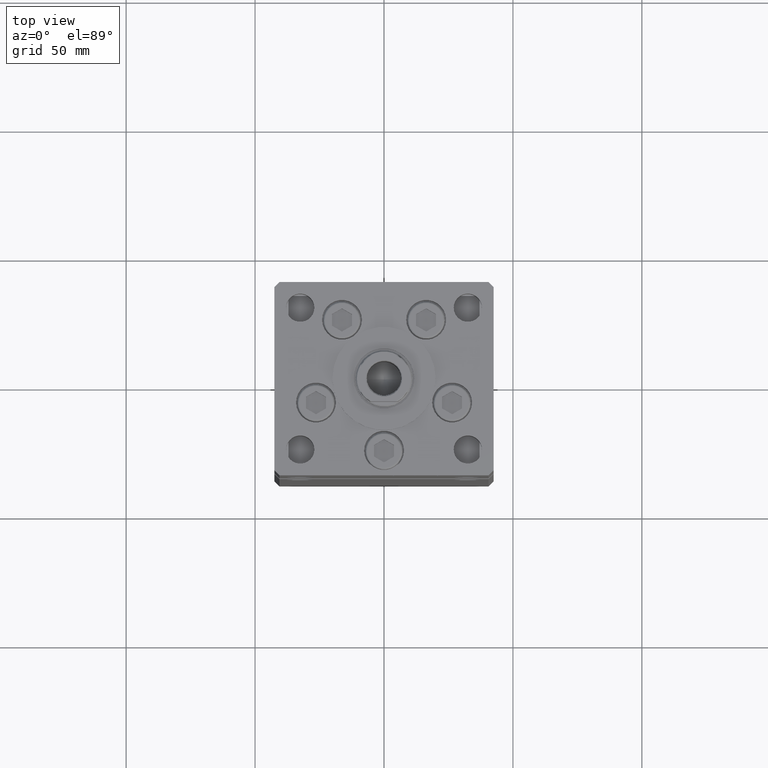
[diagram: clean part render]
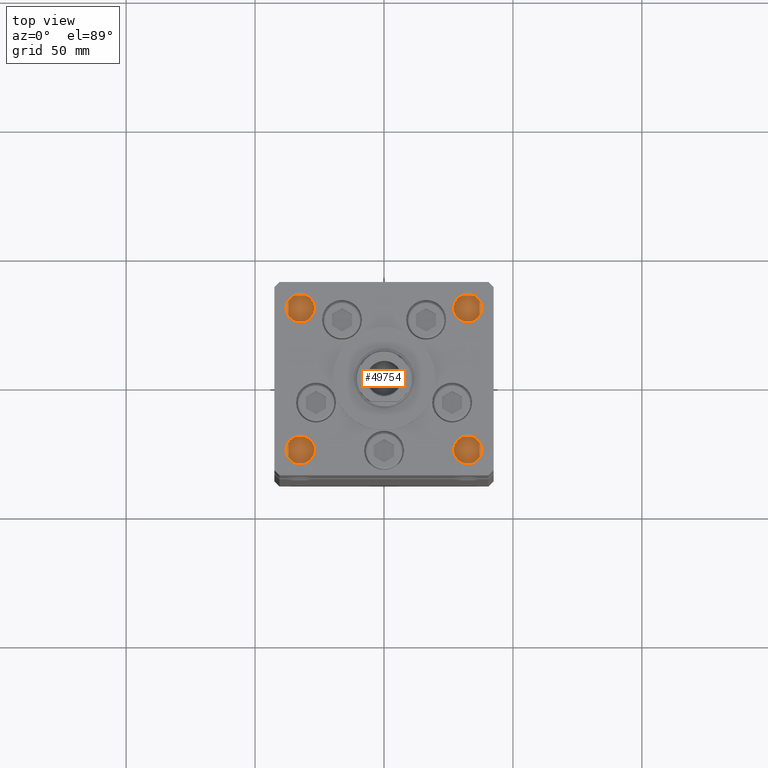
[diagram: same view with one face highlighted and labeled with its STEP entity id]
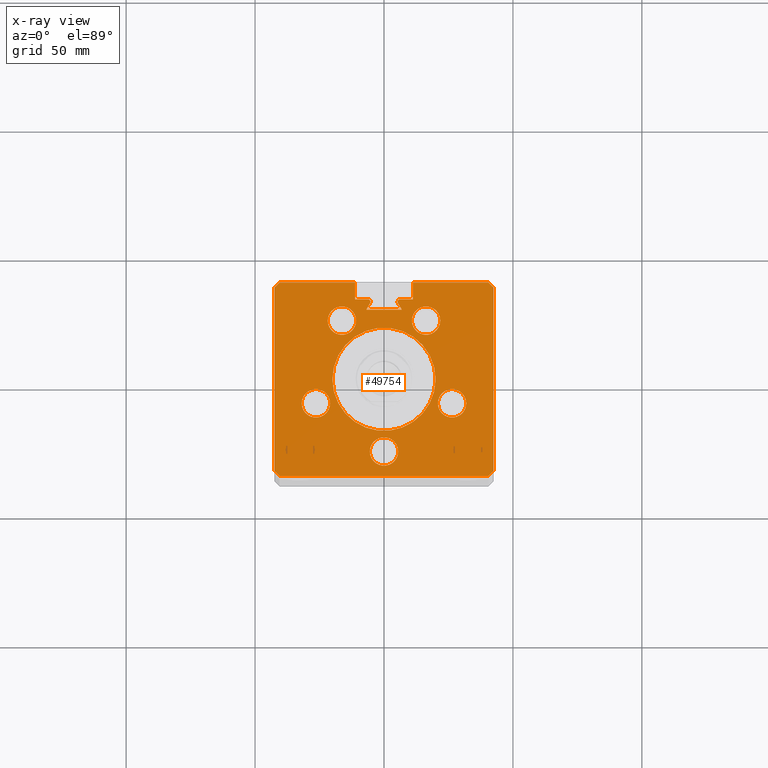
[diagram: x-ray of the same camera — body ghosted, the highlighted face saturated]
A machine part, top view. The second image highlights one B-rep face of the part: STEP entity #49754.
The next image is the same camera in x-ray: the body ghosted, the highlighted face saturated — about 0% of this face is hidden behind the body in this view.
In plain terms, the highlighted planar face has unit normal (0, 0, -1).
Its self-contained STEP definition (entity closure, byte-faithful):
#14 = VECTOR ( 'NONE', #19499, 1000.000000000000114 ) ;
#664 = ORIENTED_EDGE ( 'NONE', *, *, #48038, .F. ) ;
#746 = ORIENTED_EDGE ( 'NONE', *, *, #6287, .F. ) ;
#1434 = DIRECTION ( 'NONE',  ( 0.000000000000000000, 0.000000000000000000, 1.000000000000000000 ) ) ;
#1459 = VERTEX_POINT ( 'NONE', #34667 ) ;
#1681 = EDGE_CURVE ( 'NONE', #45643, #12993, #36805, .T. ) ;
#2000 = DIRECTION ( 'NONE',  ( 0.000000000000000000, 0.000000000000000000, 1.000000000000000000 ) ) ;
#3294 = CARTESIAN_POINT ( 'NONE',  ( -10.82291334290543539, 22.74999999999999645, 218.5000000000000000 ) ) ;
#3360 = VECTOR ( 'NONE', #42846, 1000.000000000000000 ) ;
#3737 = ORIENTED_EDGE ( 'NONE', *, *, #7139, .F. ) ;
#3821 = EDGE_LOOP ( 'NONE', ( #35734, #36128 ) ) ;
#4309 = DIRECTION ( 'NONE',  ( 1.000000000000000000, 0.000000000000000000, 0.000000000000000000 ) ) ;
#4550 = CIRCLE ( 'NONE', #34580, 20.00000000000000000 ) ;
#4726 = CIRCLE ( 'NONE', #41638, 0.9333333333340008142 ) ;
#5113 = DIRECTION ( 'NONE',  ( 0.000000000000000000, 0.000000000000000000, -1.000000000000000000 ) ) ;
#5219 = CARTESIAN_POINT ( 'NONE',  ( -11.24999999999999822, 37.50000000000000000, 218.5000000000000000 ) ) ;
#5471 = CIRCLE ( 'NONE', #18320, 5.500000000000000000 ) ;
#6014 = LINE ( 'NONE', #22404, #13465 ) ;
#6057 = DIRECTION ( 'NONE',  ( 0.000000000000000000, 0.000000000000000000, 1.000000000000000000 ) ) ;
#6229 = EDGE_CURVE ( 'NONE', #40779, #30402, #41894, .T. ) ;
#6287 = EDGE_CURVE ( 'NONE', #45111, #23029, #13664, .T. ) ;
#6391 = CARTESIAN_POINT ( 'NONE',  ( -26.39865316429776954, -9.333333333333342807, 218.5000000000000000 ) ) ;
#6404 = AXIS2_PLACEMENT_3D ( 'NONE', #35314, #2000, #31290 ) ;
#6434 = VERTEX_POINT ( 'NONE', #52830 ) ;
#6723 = LINE ( 'NONE', #31973, #45683 ) ;
#6940 = VECTOR ( 'NONE', #17433, 1000.000000000000000 ) ;
#7139 = EDGE_CURVE ( 'NONE', #40504, #16895, #37858, .T. ) ;
#7219 = CARTESIAN_POINT ( 'NONE',  ( 6.876153656360465938, 26.99999999999986855, 218.5000000000000000 ) ) ;
#7511 = DIRECTION ( 'NONE',  ( 0.4999999999999994449, -0.8660254037844390407, 0.000000000000000000 ) ) ;
#7575 = ORIENTED_EDGE ( 'NONE', *, *, #22132, .F. ) ;
#7730 = EDGE_CURVE ( 'NONE', #1459, #6434, #42205, .T. ) ;
#8155 = CIRCLE ( 'NONE', #32178, 5.500000000000000000 ) ;
#8922 = ORIENTED_EDGE ( 'NONE', *, *, #18905, .F. ) ;
#8979 = DIRECTION ( 'NONE',  ( 1.000000000000000000, 0.000000000000000000, 0.000000000000000000 ) ) ;
#9048 = EDGE_LOOP ( 'NONE', ( #13295, #47566 ) ) ;
#9122 = CIRCLE ( 'NONE', #42595, 5.499999999999998224 ) ;
#9239 = VECTOR ( 'NONE', #29105, 1000.000000000000000 ) ;
#9405 = CARTESIAN_POINT ( 'NONE',  ( 26.39865316429776954, -9.333333333333339255, 218.5000000000000000 ) ) ;
#9454 = CARTESIAN_POINT ( 'NONE',  ( 42.49999999999998579, -35.50000000000000711, 218.5000000000000000 ) ) ;
#9811 = CARTESIAN_POINT ( 'NONE',  ( 0.000000000000000000, 0.000000000000000000, 218.5000000000000000 ) ) ;
#9819 = CIRCLE ( 'NONE', #6404, 5.499999999999998224 ) ;
#10049 = CARTESIAN_POINT ( 'NONE',  ( 11.24999999999999822, 0.000000000000000000, 218.5000000000000000 ) ) ;
#10110 = CARTESIAN_POINT ( 'NONE',  ( -40.50000000000000711, 37.50000000000000000, 218.5000000000000000 ) ) ;
#10135 = VERTEX_POINT ( 'NONE', #18076 ) ;
#10332 = CARTESIAN_POINT ( 'NONE',  ( -31.89865316429776954, -9.333333333333342807, 218.5000000000000000 ) ) ;
#10414 = ORIENTED_EDGE ( 'NONE', *, *, #46693, .T. ) ;
#10871 = CARTESIAN_POINT ( 'NONE',  ( 0.000000000000000000, 0.000000000000000000, 218.5000000000000000 ) ) ;
#10887 = VECTOR ( 'NONE', #23608, 999.9999999999998863 ) ;
#10999 = CARTESIAN_POINT ( 'NONE',  ( 6.183333333333997928, 31.00000000000000000, 218.5000000000000000 ) ) ;
#11100 = AXIS2_PLACEMENT_3D ( 'NONE', #9405, #29314, #29841 ) ;
#11823 = VECTOR ( 'NONE', #11841, 1000.000000000000000 ) ;
#11841 = DIRECTION ( 'NONE',  ( 0.000000000000000000, 1.000000000000000000, 0.000000000000000000 ) ) ;
#12066 = VERTEX_POINT ( 'NONE', #10999 ) ;
#12215 = EDGE_CURVE ( 'NONE', #29094, #12066, #16641, .T. ) ;
#12320 = DIRECTION ( 'NONE',  ( 0.000000000000000000, 0.000000000000000000, 1.000000000000000000 ) ) ;
#12546 = VECTOR ( 'NONE', #8979, 1000.000000000000000 ) ;
#12708 = CARTESIAN_POINT ( 'NONE',  ( 0.000000000000000000, 31.00000000000000000, 218.5000000000000000 ) ) ;
#12993 = VERTEX_POINT ( 'NONE', #43070 ) ;
#13192 = ORIENTED_EDGE ( 'NONE', *, *, #17776, .F. ) ;
#13295 = ORIENTED_EDGE ( 'NONE', *, *, #39480, .F. ) ;
#13465 = VECTOR ( 'NONE', #38797, 1000.000000000000114 ) ;
#13664 = LINE ( 'NONE', #46956, #42983 ) ;
#13805 = CARTESIAN_POINT ( 'NONE',  ( 16.32291334290543361, 22.75000000000000000, 218.5000000000000000 ) ) ;
#14437 = EDGE_CURVE ( 'NONE', #23377, #35786, #6723, .T. ) ;
#14609 = ORIENTED_EDGE ( 'NONE', *, *, #40096, .T. ) ;
#14861 = EDGE_LOOP ( 'NONE', ( #3737, #664 ) ) ;
#15185 = CARTESIAN_POINT ( 'NONE',  ( 1.714505518806294638E-15, -28.00000000000000000, 218.5000000000000000 ) ) ;
#15456 = AXIS2_PLACEMENT_3D ( 'NONE', #9811, #29461, #21925 ) ;
#15467 = ORIENTED_EDGE ( 'NONE', *, *, #38884, .F. ) ;
#15511 = CARTESIAN_POINT ( 'NONE',  ( 1.714505518806294638E-15, -28.00000000000000000, 218.5000000000000000 ) ) ;
#16166 = DIRECTION ( 'NONE',  ( 0.000000000000000000, 0.000000000000000000, 1.000000000000000000 ) ) ;
#16606 = VERTEX_POINT ( 'NONE', #34868 ) ;
#16641 = LINE ( 'NONE', #37054, #41425 ) ;
#16752 = LINE ( 'NONE', #12708, #9239 ) ;
#16895 = VERTEX_POINT ( 'NONE', #21261 ) ;
#16991 = VERTEX_POINT ( 'NONE', #42489 ) ;
#17077 = CARTESIAN_POINT ( 'NONE',  ( 5.375042956467945388, 29.59999999999899600, 218.5000000000000000 ) ) ;
#17101 = FACE_BOUND ( 'NONE', #14861, .T. ) ;
#17176 = DIRECTION ( 'NONE',  ( -1.000000000000000000, 0.000000000000000000, 0.000000000000000000 ) ) ;
#17433 = DIRECTION ( 'NONE',  ( 1.000000000000000000, 0.000000000000000000, 0.000000000000000000 ) ) ;
#17676 = CARTESIAN_POINT ( 'NONE',  ( 42.50000000000001421, 35.50000000000000711, 218.5000000000000000 ) ) ;
#17776 = EDGE_CURVE ( 'NONE', #40232, #52438, #4550, .T. ) ;
#18076 = CARTESIAN_POINT ( 'NONE',  ( -6.876153656360465938, 26.99999999999986855, 218.5000000000000000 ) ) ;
#18136 = EDGE_CURVE ( 'NONE', #35786, #10135, #37391, .T. ) ;
#18320 = AXIS2_PLACEMENT_3D ( 'NONE', #38266, #30985, #26173 ) ;
#18362 = CARTESIAN_POINT ( 'NONE',  ( -6.183333333333997928, 30.06666666666599852, 218.5000000000000000 ) ) ;
#18630 = DIRECTION ( 'NONE',  ( 0.000000000000000000, 0.000000000000000000, -1.000000000000000000 ) ) ;
#18905 = EDGE_CURVE ( 'NONE', #28626, #19885, #5471, .T. ) ;
#18982 = DIRECTION ( 'NONE',  ( 1.000000000000000000, 0.000000000000000000, 0.000000000000000000 ) ) ;
#19087 = ORIENTED_EDGE ( 'NONE', *, *, #37057, .T. ) ;
#19295 = ORIENTED_EDGE ( 'NONE', *, *, #33838, .F. ) ;
#19415 = DIRECTION ( 'NONE',  ( -3.909236002201255146E-16, -1.000000000000000000, 0.000000000000000000 ) ) ;
#19458 = DIRECTION ( 'NONE',  ( 3.909236002201255146E-16, -1.000000000000000000, 0.000000000000000000 ) ) ;
#19475 = EDGE_CURVE ( 'NONE', #23377, #12066, #52673, .T. ) ;
#19499 = DIRECTION ( 'NONE',  ( 0.7071067811865474617, -0.7071067811865474617, 0.000000000000000000 ) ) ;
#19600 = CARTESIAN_POINT ( 'NONE',  ( 40.50000000000000711, 37.50000000000000000, 218.5000000000000000 ) ) ;
#19843 = CARTESIAN_POINT ( 'NONE',  ( -16.84845819336020867, 9.727461873366657130, 218.5000000000000000 ) ) ;
#19885 = VERTEX_POINT ( 'NONE', #3294 ) ;
#19968 = LINE ( 'NONE', #44697, #28923 ) ;
#20746 = ORIENTED_EDGE ( 'NONE', *, *, #31229, .F. ) ;
#20892 = DIRECTION ( 'NONE',  ( 0.000000000000000000, 0.000000000000000000, -1.000000000000000000 ) ) ;
#21197 = ORIENTED_EDGE ( 'NONE', *, *, #41450, .F. ) ;
#21261 = CARTESIAN_POINT ( 'NONE',  ( 20.89865316429777309, -9.333333333333339255, 218.5000000000000000 ) ) ;
#21440 = CARTESIAN_POINT ( 'NONE',  ( 0.000000000000000000, 0.000000000000000000, 218.5000000000000000 ) ) ;
#21502 = ORIENTED_EDGE ( 'NONE', *, *, #32485, .F. ) ;
#21784 = CARTESIAN_POINT ( 'NONE',  ( 31.89865316429776954, -9.333333333333339255, 218.5000000000000000 ) ) ;
#21925 = DIRECTION ( 'NONE',  ( -1.000000000000000000, 0.000000000000000000, -0.000000000000000000 ) ) ;
#22132 = EDGE_CURVE ( 'NONE', #49683, #39899, #38187, .T. ) ;
#22142 = AXIS2_PLACEMENT_3D ( 'NONE', #48605, #12320, #28995 ) ;
#22163 = LINE ( 'NONE', #10049, #3360 ) ;
#22350 = DIRECTION ( 'NONE',  ( 0.000000000000000000, 0.000000000000000000, 1.000000000000000000 ) ) ;
#22404 = CARTESIAN_POINT ( 'NONE',  ( 42.49999999999998579, -35.50000000000000711, 218.5000000000000000 ) ) ;
#22422 = AXIS2_PLACEMENT_3D ( 'NONE', #13805, #1434, #30196 ) ;
#22554 = CARTESIAN_POINT ( 'NONE',  ( -40.49999999999998579, -37.50000000000000711, 218.5000000000000000 ) ) ;
#22784 = DIRECTION ( 'NONE',  ( 0.000000000000000000, 0.000000000000000000, 1.000000000000000000 ) ) ;
#23029 = VERTEX_POINT ( 'NONE', #17676 ) ;
#23351 = LINE ( 'NONE', #22554, #43717 ) ;
#23377 = VERTEX_POINT ( 'NONE', #17077 ) ;
#23608 = DIRECTION ( 'NONE',  ( 0.4999999999999994449, 0.8660254037844390407, 0.000000000000000000 ) ) ;
#24217 = DIRECTION ( 'NONE',  ( 1.000000000000000000, 0.000000000000000000, 0.000000000000000000 ) ) ;
#24698 = ORIENTED_EDGE ( 'NONE', *, *, #12215, .T. ) ;
#24751 = CARTESIAN_POINT ( 'NONE',  ( -11.24999999999999822, 0.000000000000000000, 218.5000000000000000 ) ) ;
#25123 = CARTESIAN_POINT ( 'NONE',  ( -21.82291334290543361, 22.74999999999999645, 218.5000000000000000 ) ) ;
#25125 = ORIENTED_EDGE ( 'NONE', *, *, #48203, .T. ) ;
#25158 = FACE_BOUND ( 'NONE', #41861, .T. ) ;
#25167 = EDGE_LOOP ( 'NONE', ( #19295, #20746 ) ) ;
#25373 = ORIENTED_EDGE ( 'NONE', *, *, #18136, .T. ) ;
#25541 = CARTESIAN_POINT ( 'NONE',  ( -6.183333333333997928, 30.06666666666599852, 218.5000000000000000 ) ) ;
#25613 = CARTESIAN_POINT ( 'NONE',  ( 20.00000000000000000, 2.449293598294706513E-15, 218.5000000000000000 ) ) ;
#25690 = PLANE ( 'NONE',  #15456 ) ;
#26024 = DIRECTION ( 'NONE',  ( 0.7071067811865500152, -0.7071067811865451302, 0.000000000000000000 ) ) ;
#26173 = DIRECTION ( 'NONE',  ( 1.000000000000000000, 0.000000000000000000, 0.000000000000000000 ) ) ;
#26212 = CARTESIAN_POINT ( 'NONE',  ( -40.50000000000000711, 37.50000000000000000, 218.5000000000000000 ) ) ;
#27086 = ORIENTED_EDGE ( 'NONE', *, *, #19475, .F. ) ;
#27291 = EDGE_LOOP ( 'NONE', ( #44216, #50630, #49778, #34422, #14609, #37874, #25125, #21197, #27357, #746, #40278, #10414, #24698, #27086, #51271, #25373, #19087, #21502, #7575 ) ) ;
#27357 = ORIENTED_EDGE ( 'NONE', *, *, #29972, .F. ) ;
#27390 = CIRCLE ( 'NONE', #11100, 5.499999999999998224 ) ;
#27525 = EDGE_CURVE ( 'NONE', #50771, #30402, #28784, .T. ) ;
#27732 = EDGE_CURVE ( 'NONE', #19885, #28626, #42733, .T. ) ;
#27791 = AXIS2_PLACEMENT_3D ( 'NONE', #28963, #20892, #18982 ) ;
#28434 = EDGE_CURVE ( 'NONE', #16606, #35271, #47711, .T. ) ;
#28528 = CARTESIAN_POINT ( 'NONE',  ( 0.000000000000000000, 26.99999999999986855, 218.5000000000000000 ) ) ;
#28605 = LINE ( 'NONE', #5219, #12546 ) ;
#28626 = VERTEX_POINT ( 'NONE', #25123 ) ;
#28663 = EDGE_LOOP ( 'NONE', ( #15467, #13192 ) ) ;
#28784 = LINE ( 'NONE', #24751, #11823 ) ;
#28923 = VECTOR ( 'NONE', #19458, 1000.000000000000000 ) ;
#28963 = CARTESIAN_POINT ( 'NONE',  ( 6.183333333333997928, 30.06666666666599852, 218.5000000000000000 ) ) ;
#28995 = DIRECTION ( 'NONE',  ( 1.000000000000000000, 0.000000000000000000, 0.000000000000000000 ) ) ;
#29094 = VERTEX_POINT ( 'NONE', #31333 ) ;
#29105 = DIRECTION ( 'NONE',  ( -1.000000000000000000, 0.000000000000000000, 0.000000000000000000 ) ) ;
#29314 = DIRECTION ( 'NONE',  ( 0.000000000000000000, 0.000000000000000000, 1.000000000000000000 ) ) ;
#29337 = DIRECTION ( 'NONE',  ( -1.000000000000000000, 0.000000000000000000, 0.000000000000000000 ) ) ;
#29461 = DIRECTION ( 'NONE',  ( 0.000000000000000000, 0.000000000000000000, -1.000000000000000000 ) ) ;
#29841 = DIRECTION ( 'NONE',  ( 1.000000000000000000, 0.000000000000000000, 0.000000000000000000 ) ) ;
#29972 = EDGE_CURVE ( 'NONE', #23029, #41037, #47890, .T. ) ;
#30066 = CARTESIAN_POINT ( 'NONE',  ( -20.00000000000000000, 0.000000000000000000, 218.5000000000000000 ) ) ;
#30196 = DIRECTION ( 'NONE',  ( 1.000000000000000000, 0.000000000000000000, 0.000000000000000000 ) ) ;
#30402 = VERTEX_POINT ( 'NONE', #39354 ) ;
#30417 = VECTOR ( 'NONE', #19415, 1000.000000000000000 ) ;
#30429 = EDGE_CURVE ( 'NONE', #6434, #1459, #9819, .T. ) ;
#30985 = DIRECTION ( 'NONE',  ( 0.000000000000000000, 0.000000000000000000, 1.000000000000000000 ) ) ;
#31129 = DIRECTION ( 'NONE',  ( 1.000000000000000000, 0.000000000000000000, 0.000000000000000000 ) ) ;
#31154 = DIRECTION ( 'NONE',  ( 1.000000000000000000, 0.000000000000000000, 0.000000000000000000 ) ) ;
#31229 = EDGE_CURVE ( 'NONE', #16991, #41296, #8155, .T. ) ;
#31290 = DIRECTION ( 'NONE',  ( 1.000000000000000000, 0.000000000000000000, 0.000000000000000000 ) ) ;
#31333 = CARTESIAN_POINT ( 'NONE',  ( 11.24999999999999822, 31.00000000000000000, 218.5000000000000000 ) ) ;
#31564 = DIRECTION ( 'NONE',  ( -0.000000000000000000, 0.000000000000000000, 1.000000000000000000 ) ) ;
#31973 = CARTESIAN_POINT ( 'NONE',  ( 16.84845819336020867, 9.727461873366657130, 218.5000000000000000 ) ) ;
#32163 = VERTEX_POINT ( 'NONE', #51467 ) ;
#32178 = AXIS2_PLACEMENT_3D ( 'NONE', #15185, #6057, #51189 ) ;
#32358 = VECTOR ( 'NONE', #34575, 1000.000000000000114 ) ;
#32423 = CARTESIAN_POINT ( 'NONE',  ( -11.24999999999999822, 31.00000000000000000, 218.5000000000000000 ) ) ;
#32485 = EDGE_CURVE ( 'NONE', #39899, #33117, #4726, .T. ) ;
#32675 = CARTESIAN_POINT ( 'NONE',  ( -6.183333333333997928, 31.00000000000000000, 218.5000000000000000 ) ) ;
#33006 = AXIS2_PLACEMENT_3D ( 'NONE', #25541, #5113, #4309 ) ;
#33089 = CARTESIAN_POINT ( 'NONE',  ( 26.39865316429776954, -9.333333333333339255, 218.5000000000000000 ) ) ;
#33117 = VERTEX_POINT ( 'NONE', #47145 ) ;
#33529 = DIRECTION ( 'NONE',  ( -0.000000000000000000, 0.000000000000000000, 1.000000000000000000 ) ) ;
#33749 = FACE_BOUND ( 'NONE', #9048, .T. ) ;
#33838 = EDGE_CURVE ( 'NONE', #41296, #16991, #36546, .T. ) ;
#33997 = AXIS2_PLACEMENT_3D ( 'NONE', #15511, #52835, #48284 ) ;
#34035 = AXIS2_PLACEMENT_3D ( 'NONE', #21440, #33529, #37829 ) ;
#34422 = ORIENTED_EDGE ( 'NONE', *, *, #41924, .T. ) ;
#34575 = DIRECTION ( 'NONE',  ( -0.7071067811865500152, -0.7071067811865451302, 0.000000000000000000 ) ) ;
#34580 = AXIS2_PLACEMENT_3D ( 'NONE', #10871, #31564, #44192 ) ;
#34667 = CARTESIAN_POINT ( 'NONE',  ( 21.82291334290543361, 22.75000000000000000, 218.5000000000000000 ) ) ;
#34868 = CARTESIAN_POINT ( 'NONE',  ( -42.49999999999998579, -35.50000000000000711, 218.5000000000000000 ) ) ;
#34901 = EDGE_CURVE ( 'NONE', #32163, #45111, #28605, .T. ) ;
#35173 = CARTESIAN_POINT ( 'NONE',  ( -42.50000000000001421, 35.50000000000000711, 218.5000000000000000 ) ) ;
#35271 = VERTEX_POINT ( 'NONE', #38980 ) ;
#35314 = CARTESIAN_POINT ( 'NONE',  ( 16.32291334290543361, 22.75000000000000000, 218.5000000000000000 ) ) ;
#35661 = VERTEX_POINT ( 'NONE', #41733 ) ;
#35734 = ORIENTED_EDGE ( 'NONE', *, *, #7730, .F. ) ;
#35786 = VERTEX_POINT ( 'NONE', #7219 ) ;
#36054 = CARTESIAN_POINT ( 'NONE',  ( 42.50000000000001421, 35.50000000000000711, 218.5000000000000000 ) ) ;
#36128 = ORIENTED_EDGE ( 'NONE', *, *, #30429, .F. ) ;
#36546 = CIRCLE ( 'NONE', #33997, 5.500000000000000000 ) ;
#36578 = CIRCLE ( 'NONE', #34035, 20.00000000000000000 ) ;
#36805 = CIRCLE ( 'NONE', #38548, 5.499999999999998224 ) ;
#37054 = CARTESIAN_POINT ( 'NONE',  ( 0.000000000000000000, 31.00000000000000000, 218.5000000000000000 ) ) ;
#37057 = EDGE_CURVE ( 'NONE', #10135, #33117, #40275, .T. ) ;
#37249 = FACE_BOUND ( 'NONE', #28663, .T. ) ;
#37391 = LINE ( 'NONE', #28528, #49181 ) ;
#37784 = FACE_BOUND ( 'NONE', #3821, .T. ) ;
#37829 = DIRECTION ( 'NONE',  ( 1.000000000000000000, 0.000000000000000000, 0.000000000000000000 ) ) ;
#37858 = CIRCLE ( 'NONE', #44710, 5.499999999999998224 ) ;
#37874 = ORIENTED_EDGE ( 'NONE', *, *, #28434, .T. ) ;
#38187 = CIRCLE ( 'NONE', #33006, 0.9333333333340008142 ) ;
#38266 = CARTESIAN_POINT ( 'NONE',  ( -16.32291334290543361, 22.74999999999999645, 218.5000000000000000 ) ) ;
#38548 = AXIS2_PLACEMENT_3D ( 'NONE', #6391, #22784, #31129 ) ;
#38797 = DIRECTION ( 'NONE',  ( -0.7071067811865474617, -0.7071067811865474617, 0.000000000000000000 ) ) ;
#38884 = EDGE_CURVE ( 'NONE', #52438, #40232, #36578, .T. ) ;
#38980 = CARTESIAN_POINT ( 'NONE',  ( -40.49999999999998579, -37.50000000000000711, 218.5000000000000000 ) ) ;
#39354 = CARTESIAN_POINT ( 'NONE',  ( -11.24999999999999822, 37.50000000000000000, 218.5000000000000000 ) ) ;
#39480 = EDGE_CURVE ( 'NONE', #12993, #45643, #9122, .T. ) ;
#39667 = CARTESIAN_POINT ( 'NONE',  ( 5.500000000000001776, -28.00000000000000000, 218.5000000000000000 ) ) ;
#39899 = VERTEX_POINT ( 'NONE', #40212 ) ;
#40096 = EDGE_CURVE ( 'NONE', #48206, #16606, #19968, .T. ) ;
#40212 = CARTESIAN_POINT ( 'NONE',  ( -5.249999999999996447, 30.06666666666599852, 218.5000000000000000 ) ) ;
#40232 = VERTEX_POINT ( 'NONE', #25613 ) ;
#40275 = LINE ( 'NONE', #19843, #10887 ) ;
#40278 = ORIENTED_EDGE ( 'NONE', *, *, #34901, .F. ) ;
#40504 = VERTEX_POINT ( 'NONE', #21784 ) ;
#40779 = VERTEX_POINT ( 'NONE', #26212 ) ;
#41037 = VERTEX_POINT ( 'NONE', #9454 ) ;
#41296 = VERTEX_POINT ( 'NONE', #39667 ) ;
#41425 = VECTOR ( 'NONE', #17176, 1000.000000000000000 ) ;
#41450 = EDGE_CURVE ( 'NONE', #41037, #35661, #6014, .T. ) ;
#41638 = AXIS2_PLACEMENT_3D ( 'NONE', #18362, #18630, #47367 ) ;
#41733 = CARTESIAN_POINT ( 'NONE',  ( 40.49999999999998579, -37.50000000000000711, 218.5000000000000000 ) ) ;
#41861 = EDGE_LOOP ( 'NONE', ( #50211, #8922 ) ) ;
#41894 = LINE ( 'NONE', #45907, #6940 ) ;
#41924 = EDGE_CURVE ( 'NONE', #40779, #48206, #43696, .T. ) ;
#42205 = CIRCLE ( 'NONE', #22422, 5.499999999999998224 ) ;
#42361 = FACE_OUTER_BOUND ( 'NONE', #27291, .T. ) ;
#42489 = CARTESIAN_POINT ( 'NONE',  ( -5.499999999999998224, -28.00000000000000000, 218.5000000000000000 ) ) ;
#42595 = AXIS2_PLACEMENT_3D ( 'NONE', #46549, #22350, #52367 ) ;
#42733 = CIRCLE ( 'NONE', #22142, 5.500000000000000000 ) ;
#42846 = DIRECTION ( 'NONE',  ( -0.000000000000000000, -1.000000000000000000, 0.000000000000000000 ) ) ;
#42983 = VECTOR ( 'NONE', #26024, 1000.000000000000114 ) ;
#43070 = CARTESIAN_POINT ( 'NONE',  ( -20.89865316429777309, -9.333333333333342807, 218.5000000000000000 ) ) ;
#43431 = EDGE_CURVE ( 'NONE', #49683, #50771, #16752, .T. ) ;
#43696 = LINE ( 'NONE', #10110, #32358 ) ;
#43717 = VECTOR ( 'NONE', #31154, 1000.000000000000000 ) ;
#44192 = DIRECTION ( 'NONE',  ( 1.000000000000000000, 0.000000000000000000, 0.000000000000000000 ) ) ;
#44216 = ORIENTED_EDGE ( 'NONE', *, *, #43431, .T. ) ;
#44697 = CARTESIAN_POINT ( 'NONE',  ( -42.50000000000001421, 35.50000000000000711, 218.5000000000000000 ) ) ;
#44710 = AXIS2_PLACEMENT_3D ( 'NONE', #33089, #16166, #24217 ) ;
#45111 = VERTEX_POINT ( 'NONE', #19600 ) ;
#45585 = FACE_BOUND ( 'NONE', #25167, .T. ) ;
#45643 = VERTEX_POINT ( 'NONE', #10332 ) ;
#45683 = VECTOR ( 'NONE', #7511, 999.9999999999998863 ) ;
#45907 = CARTESIAN_POINT ( 'NONE',  ( -11.24999999999999822, 37.50000000000000000, 218.5000000000000000 ) ) ;
#46549 = CARTESIAN_POINT ( 'NONE',  ( -26.39865316429776954, -9.333333333333342807, 218.5000000000000000 ) ) ;
#46693 = EDGE_CURVE ( 'NONE', #32163, #29094, #22163, .T. ) ;
#46956 = CARTESIAN_POINT ( 'NONE',  ( 40.50000000000000711, 37.50000000000000000, 218.5000000000000000 ) ) ;
#47145 = CARTESIAN_POINT ( 'NONE',  ( -5.375042956467944499, 29.59999999999899600, 218.4999999999999716 ) ) ;
#47367 = DIRECTION ( 'NONE',  ( 1.000000000000000000, 0.000000000000000000, 0.000000000000000000 ) ) ;
#47566 = ORIENTED_EDGE ( 'NONE', *, *, #1681, .F. ) ;
#47711 = LINE ( 'NONE', #51475, #14 ) ;
#47890 = LINE ( 'NONE', #36054, #30417 ) ;
#48038 = EDGE_CURVE ( 'NONE', #16895, #40504, #27390, .T. ) ;
#48203 = EDGE_CURVE ( 'NONE', #35271, #35661, #23351, .T. ) ;
#48206 = VERTEX_POINT ( 'NONE', #35173 ) ;
#48284 = DIRECTION ( 'NONE',  ( 1.000000000000000000, 0.000000000000000000, 0.000000000000000000 ) ) ;
#48605 = CARTESIAN_POINT ( 'NONE',  ( -16.32291334290543361, 22.74999999999999645, 218.5000000000000000 ) ) ;
#49181 = VECTOR ( 'NONE', #29337, 1000.000000000000000 ) ;
#49683 = VERTEX_POINT ( 'NONE', #32675 ) ;
#49754 = ADVANCED_FACE ( 'NONE', ( #33749, #45585, #17101, #37784, #25158, #42361, #37249 ), #25690, .F. ) ;
#49778 = ORIENTED_EDGE ( 'NONE', *, *, #6229, .F. ) ;
#50211 = ORIENTED_EDGE ( 'NONE', *, *, #27732, .F. ) ;
#50630 = ORIENTED_EDGE ( 'NONE', *, *, #27525, .T. ) ;
#50771 = VERTEX_POINT ( 'NONE', #32423 ) ;
#51189 = DIRECTION ( 'NONE',  ( 1.000000000000000000, 0.000000000000000000, 0.000000000000000000 ) ) ;
#51271 = ORIENTED_EDGE ( 'NONE', *, *, #14437, .T. ) ;
#51467 = CARTESIAN_POINT ( 'NONE',  ( 11.24999999999999112, 37.50000000000000000, 218.5000000000000000 ) ) ;
#51475 = CARTESIAN_POINT ( 'NONE',  ( -42.49999999999998579, -35.50000000000000711, 218.5000000000000000 ) ) ;
#52367 = DIRECTION ( 'NONE',  ( 1.000000000000000000, 0.000000000000000000, 0.000000000000000000 ) ) ;
#52438 = VERTEX_POINT ( 'NONE', #30066 ) ;
#52673 = CIRCLE ( 'NONE', #27791, 0.9333333333340008142 ) ;
#52830 = CARTESIAN_POINT ( 'NONE',  ( 10.82291334290543894, 22.75000000000000000, 218.5000000000000000 ) ) ;
#52835 = DIRECTION ( 'NONE',  ( 0.000000000000000000, 0.000000000000000000, 1.000000000000000000 ) ) ;